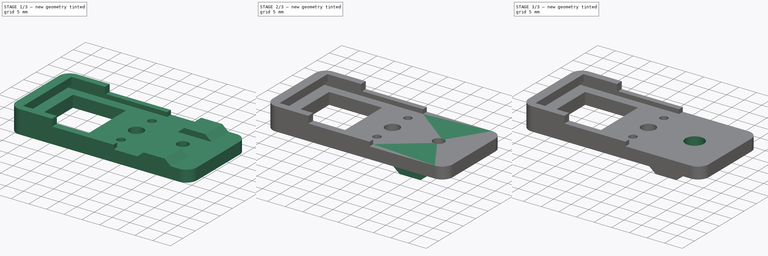
[diagram: build sequence overview — one tinted view per stage of 3, left to right]
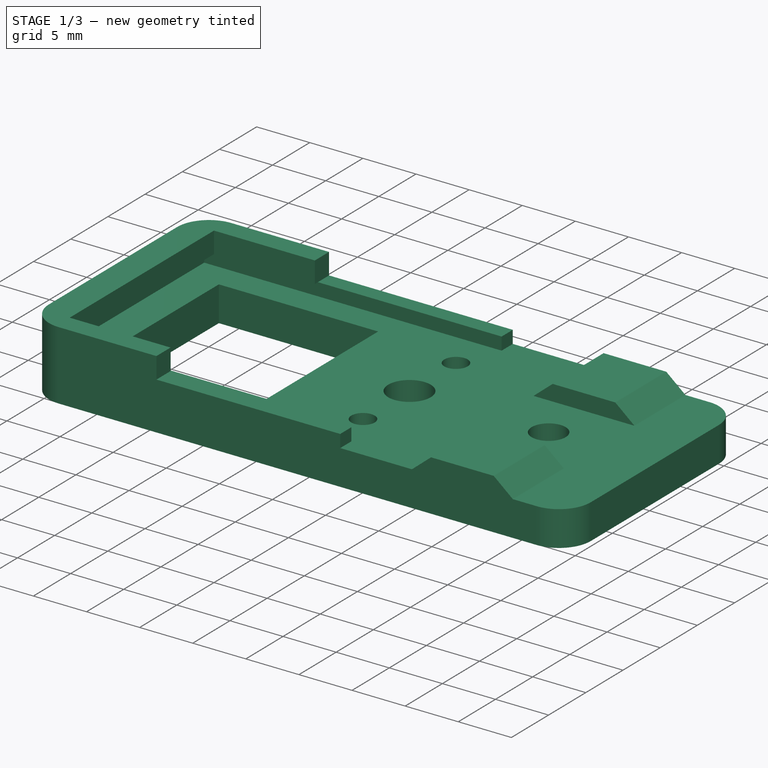
[diagram: stage 1 of 3 — iso view after this stage's code; geometry added in this stage tinted green]
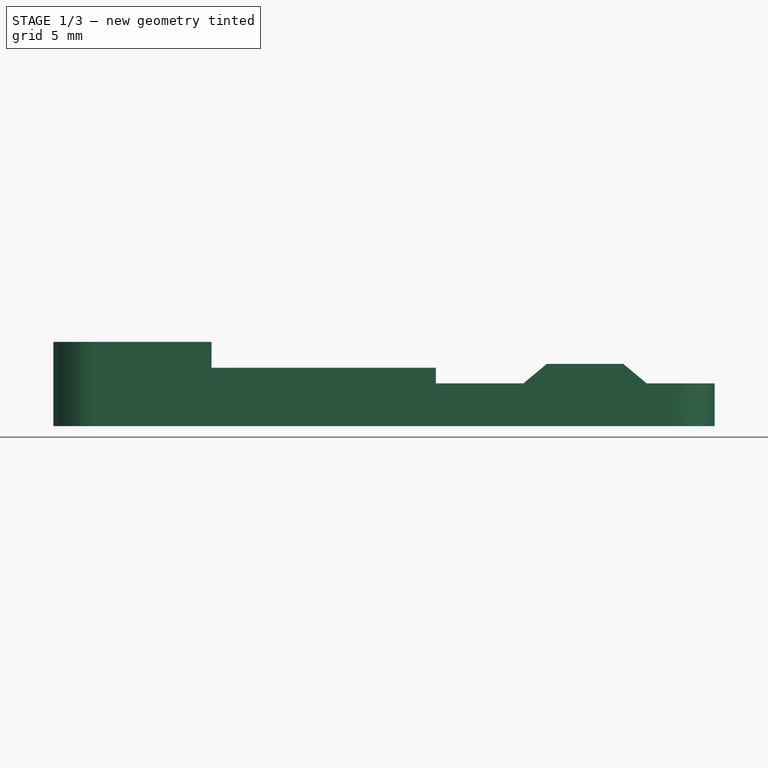
[diagram: stage 1 of 3 — front view after this stage's code; geometry added in this stage tinted green]
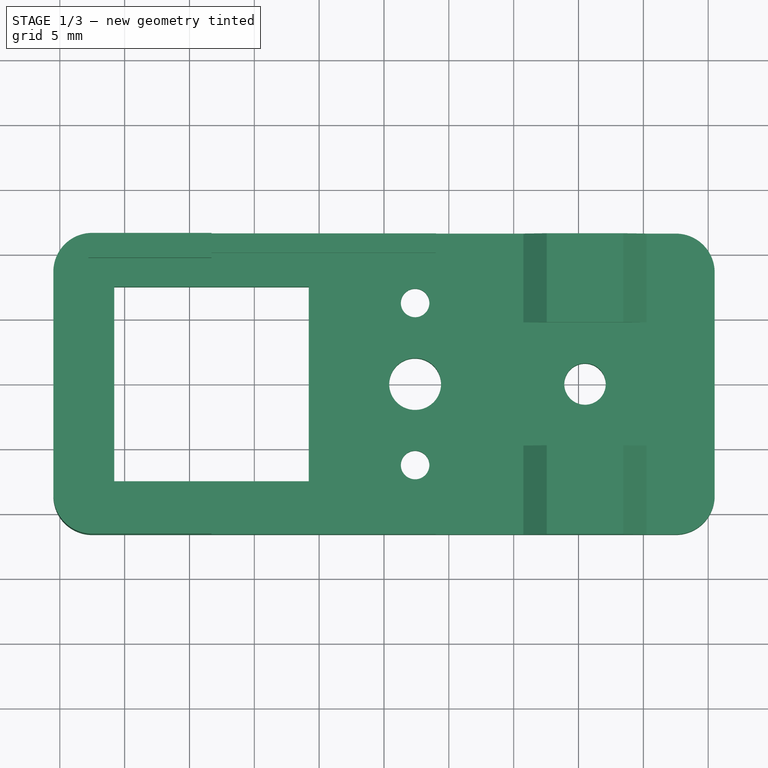
[diagram: stage 1 of 3 — top view after this stage's code; geometry added in this stage tinted green]
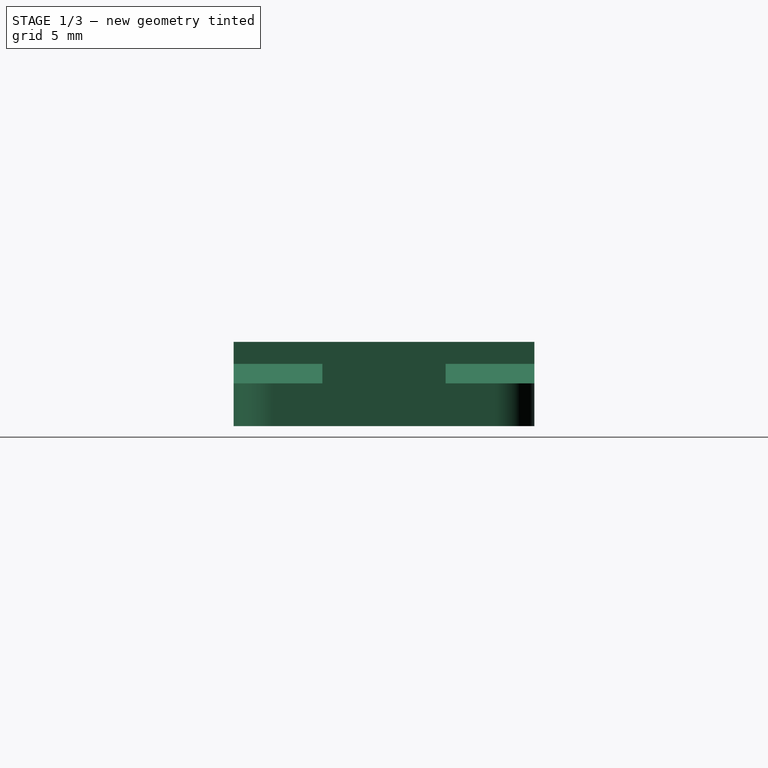
[diagram: stage 1 of 3 — right view after this stage's code; geometry added in this stage tinted green]
FCSTD DOCUMENT  (FreeCAD 1.1R44874 (Git))
Label: lamp-base-X1-V2
License: All rights reserved
LicenseURL: http://en.wikipedia.org/wiki/All_rights_reserved
objects: Sketcher::SketchObject×5, PartDesign::Pocket×4, Part::Feature×1, Part::Refine×1, PartDesign::FeatureBase×1, PartDesign::Pad×1, PartDesign::Body×1, App::Point×1
note: 30 computed .brp shape members not serialized (recipe doc carries the construction recipe); baked Part::Feature solids carry a one-line shape summary decoded from their .brp

FEATURE [Part::Feature] Body005
  shape: bbox 51 x 23.2 x 6.5 mm, 48 faces (baked)
FEATURE [Part::Refine] Body006
  Source = -> Body005
FEATURE [PartDesign::FeatureBase] BaseFeature
  BaseFeature = -> Body006
  Suppressed = false
FEATURE [Sketcher::SketchObject] Sketch
  ArcFitTolerance = 0
  AttachmentSupport = -> [BaseFeature]
  ExternalGeometry = -> [BaseFeature]
  ExternalTypes = [0]
  FullyConstrained = true
  MakeInternals = false
  MapMode = 5
  Placement = pos=(0,0,-2.3) rot=(1,0,0;3.14159rad)
  _ExternalGeoVersion = 0
  sketch-geometry (14):
    g0: LineSegment StartX=11.1876 StartY=4.15 StartZ=0 EndX=13.6124 EndY=4.15 EndZ=0
    g1: LineSegment StartX=13.6124 StartY=4.15 StartZ=0 EndX=14.8249 EndY=6.25 EndZ=0
    g2: LineSegment StartX=14.8249 StartY=6.25 StartZ=0 EndX=13.6124 EndY=8.35 EndZ=0
    g3: LineSegment StartX=13.6124 StartY=8.35 StartZ=0 EndX=11.1876 EndY=8.35 EndZ=0
    g4: LineSegment StartX=11.1876 StartY=8.35 StartZ=0 EndX=9.97513 EndY=6.25 EndZ=0
    g5: LineSegment StartX=9.97513 StartY=6.25 StartZ=0 EndX=11.1876 EndY=4.15 EndZ=0
    g6: Circle [constr] CenterX=12.4 CenterY=6.25 CenterZ=0 NormalX=0 NormalY=0 NormalZ=1 AngleXU=0 Radius=2.42487
    g7: LineSegment StartX=11.1876 StartY=-8.35 StartZ=0 EndX=13.6124 EndY=-8.35 EndZ=0
    g8: LineSegment StartX=13.6124 StartY=-8.35 StartZ=0 EndX=14.8249 EndY=-6.25 EndZ=0
    g9: LineSegment StartX=14.8249 StartY=-6.25 StartZ=0 EndX=13.6124 EndY=-4.15 EndZ=0
    g10: LineSegment StartX=13.6124 StartY=-4.15 StartZ=0 EndX=11.1876 EndY=-4.15 EndZ=0
    g11: LineSegment StartX=11.1876 StartY=-4.15 StartZ=0 EndX=9.97513 EndY=-6.25 EndZ=0
    g12: LineSegment StartX=9.97513 StartY=-6.25 StartZ=0 EndX=11.1876 EndY=-8.35 EndZ=0
    g13: Circle [constr] CenterX=12.4 CenterY=-6.25 CenterZ=0 NormalX=0 NormalY=0 NormalZ=1 AngleXU=0 Radius=2.42487
  constraints (32):
    c: Coincident(g0,g1)
    c: Coincident(g1,g2)
    c: Coincident(g2,g3)
    c: Coincident(g3,g4)
    c: Coincident(g4,g5)
    c: Coincident(g5,g0)
    c: Equal(g0, g1-g5) x5
    c: PointOnObject(g0,g6)
    c: PointOnObject(g1,g6)
    c: PointOnObject(g2,g6)
    c: PointOnObject(g3,g6)
    c: PointOnObject(g4,g6)
    c: PointOnObject(g5,g6)
    c: Coincident(g6,g-4)
    c: Coincident(g7,g8)
    c: Coincident(g8,g9)
    c: Coincident(g9,g10)
    c: Coincident(g10,g11)
    c: Coincident(g11,g12)
    c: Coincident(g12,g7)
    c: Equal(g7, g8-g12) x5
    c: PointOnObject(g7,g13)
    c: PointOnObject(g8,g13)
    c: PointOnObject(g9,g13)
    c: PointOnObject(g10,g13)
    c: PointOnObject(g11,g13)
    c: PointOnObject(g12,g13)
    c: Coincident(g13,g-3)
    c: Equal(g13,g6)
    c: Horizontal(g0)
    c: Horizontal(g7)
    c: DistanceY(g0,g2) = 4.2
FEATURE [PartDesign::Pocket] Pocket
  BaseFeature = -> BaseFeature
  Direction = (0,0,1)
  Length = 1.6
  Length2 = 5
  Profile = -> Sketch
  ReferenceAxis = -> Sketch [N_Axis]
  SideType = 0
  Suppressed = false
  Type = 0
  Type2 = 0
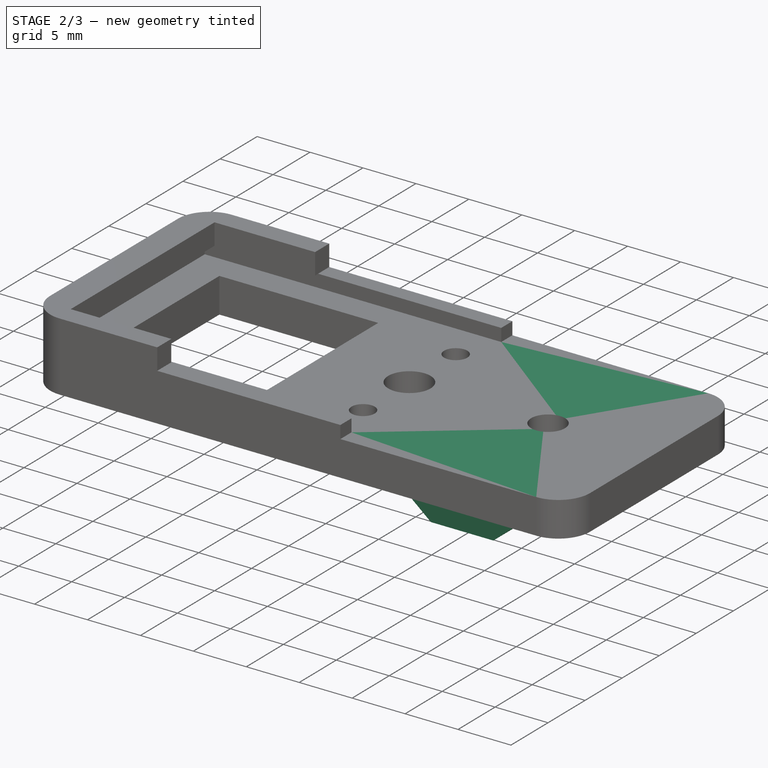
[diagram: stage 2 of 3 — iso view after this stage's code; geometry added in this stage tinted green]
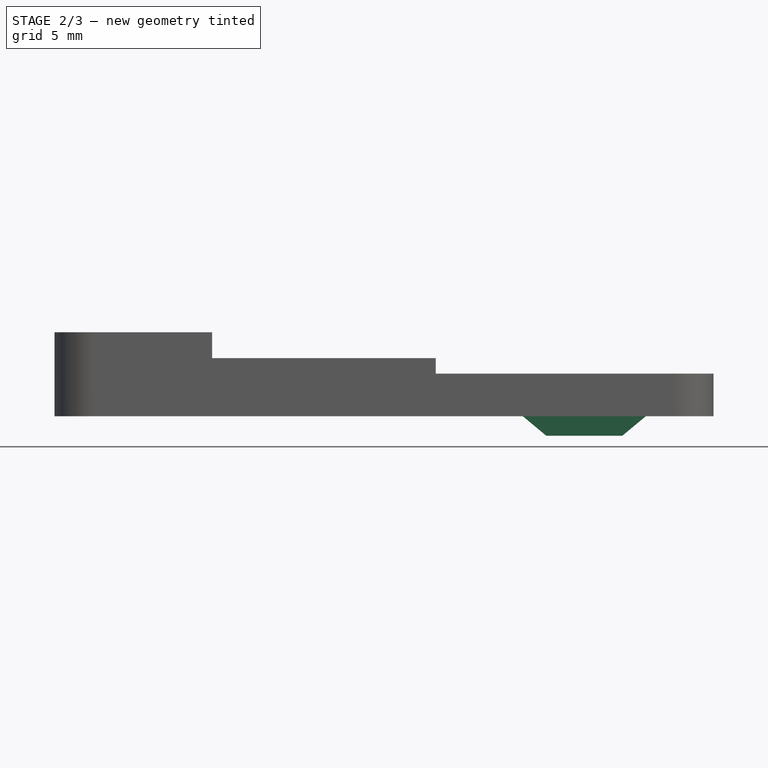
[diagram: stage 2 of 3 — front view after this stage's code; geometry added in this stage tinted green]
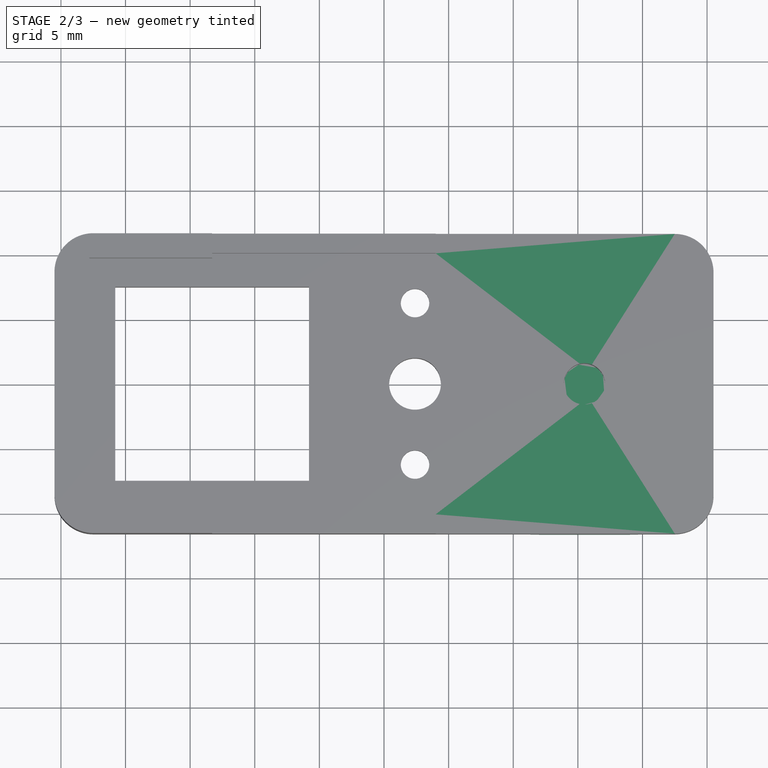
[diagram: stage 2 of 3 — top view after this stage's code; geometry added in this stage tinted green]
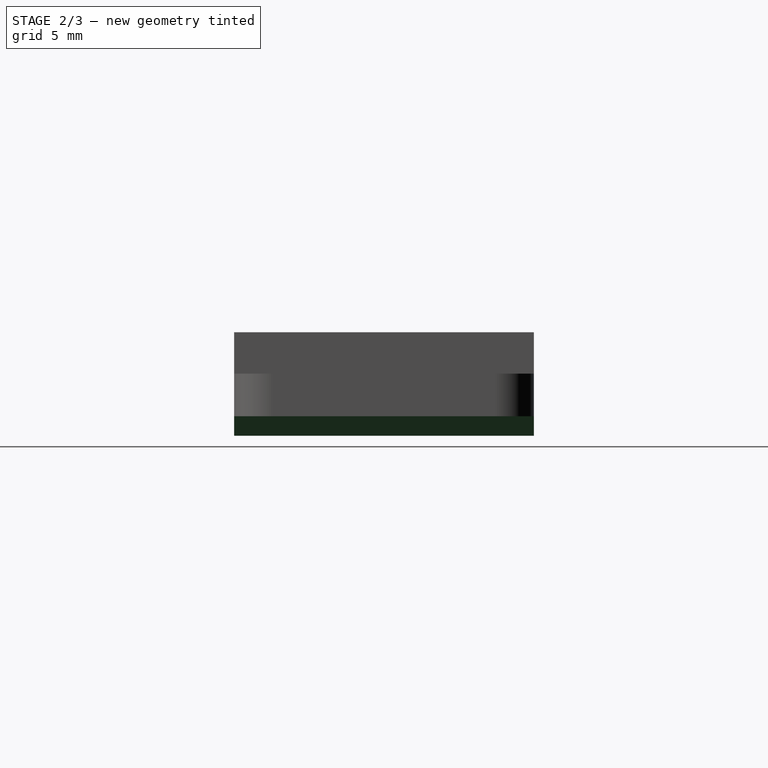
[diagram: stage 2 of 3 — right view after this stage's code; geometry added in this stage tinted green]
FEATURE [Sketcher::SketchObject] Sketch001
  ArcFitTolerance = 1e-06
  AttachmentSupport = -> [Pocket]
  ExternalGeometry = -> [Pocket]
  ExternalTypes = [0]
  FullyConstrained = true
  MakeInternals = false
  MapMode = 5
  Placement = pos=(0,-11.6,0) rot=(1,0,0;1.5708rad)
  _ExternalGeoVersion = 0
  sketch-geometry (7):
    g0: LineSegment StartX=30.25 StartY=-2.3 StartZ=0 EndX=20.75 EndY=-2.3 EndZ=0
    g1: LineSegment StartX=20.75 StartY=-2.3 StartZ=0 EndX=22.55 EndY=-3.8 EndZ=0
    g2: LineSegment StartX=22.55 StartY=-3.8 StartZ=0 EndX=28.45 EndY=-3.80002 EndZ=0
    g3: LineSegment StartX=28.45 StartY=-3.80002 StartZ=0 EndX=30.25 EndY=-2.3 EndZ=0
    g4: LineSegment [constr] StartX=20.75 StartY=1 StartZ=0 EndX=30.25 EndY=1 EndZ=0
    g5: LineSegment [constr] StartX=22.55 StartY=2.5 StartZ=0 EndX=22.55 EndY=1 EndZ=0
    g6: LineSegment [constr] StartX=22.55 StartY=-3.8 StartZ=0 EndX=22.55 EndY=-2.3 EndZ=0
  constraints (20):
    c: Coincident(g0,g1)
    c: Coincident(g1,g2)
    c: Coincident(g2,g3)
    c: Coincident(g3,g0)
    c: Coincident(g4,g-4)
    c: Coincident(g4,g-6)
    c: Equal(g0,g4)
    c: Equal(g2,g-5)
    c: Vertical(g4,g0)
    c: Vertical(g4,g0)
    c: PointOnObject(g0,g-3)
    c: Vertical(g1,g-5)
    c: Vertical(g2,g-6)
    c: Coincident(g5,g-5)
    c: PointOnObject(g5,g4)
    c: Vertical(g5)
    c: Coincident(g6,g1)
    c: PointOnObject(g6,g0)
    c: Vertical(g6)
    c: Equal(g6,g5)
FEATURE [PartDesign::Pad] Pad
  BaseFeature = -> Pocket
  Direction = (0,-1,2e-16)
  Length = 10
  Length2 = 10
  Profile = -> Sketch001
  ReferenceAxis = -> Sketch001 [N_Axis]
  Refine = true
  SideType = 0
  Suppressed = false
  Type = 3
  Type2 = 0
  UpToFace = -> Pocket [Face16]
FEATURE [Sketcher::SketchObject] Sketch002
  ArcFitTolerance = 1e-06
  AttachmentSupport = -> [Pad]
  ExternalGeometry = -> [Pad]
  ExternalTypes = [0]
  FullyConstrained = true
  MakeInternals = false
  MapMode = 5
  Placement = pos=(0,-11.6,0) rot=(1,0,0;1.5708rad)
  _ExternalGeoVersion = 0
  sketch-geometry (4):
    g0: LineSegment StartX=20.75 StartY=2.5 StartZ=0 EndX=20.75 EndY=1 EndZ=0
    g1: LineSegment StartX=20.75 StartY=1 StartZ=0 EndX=30.25 EndY=1 EndZ=0
    g2: LineSegment StartX=30.25 StartY=1 StartZ=0 EndX=30.25 EndY=2.5 EndZ=0
    g3: LineSegment StartX=30.25 StartY=2.5 StartZ=0 EndX=20.75 EndY=2.5 EndZ=0
  constraints (10):
    c: Coincident(g0,g1)
    c: Coincident(g1,g2)
    c: Coincident(g2,g3)
    c: Coincident(g3,g0)
    c: Vertical(g0)
    c: Vertical(g2)
    c: Horizontal(g3)
    c: Coincident(g1,g-5)
    c: Coincident(g0,g-4)
    c: PointOnObject(g-4,g3)
FEATURE [PartDesign::Pocket] Pocket001
  BaseFeature = -> Pad
  Direction = (0,1,-2e-16)
  Length = 5
  Length2 = 5
  Profile = -> Sketch002
  ReferenceAxis = -> Sketch002 [N_Axis]
  Refine = true
  SideType = 0
  Suppressed = false
  Type = 1
  Type2 = 0
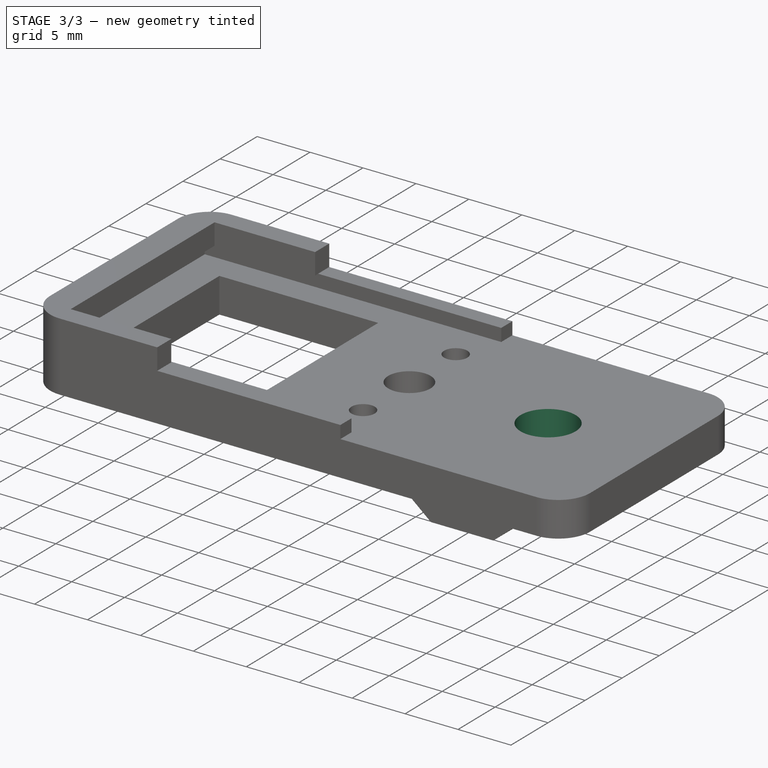
[diagram: stage 3 of 3 — iso view after this stage's code; geometry added in this stage tinted green]
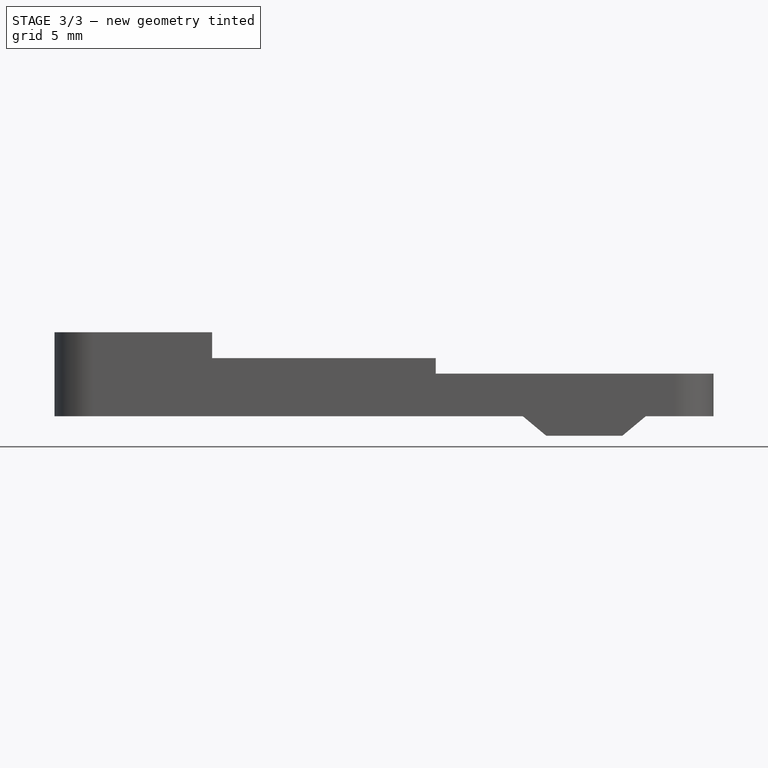
[diagram: stage 3 of 3 — front view after this stage's code; geometry added in this stage tinted green]
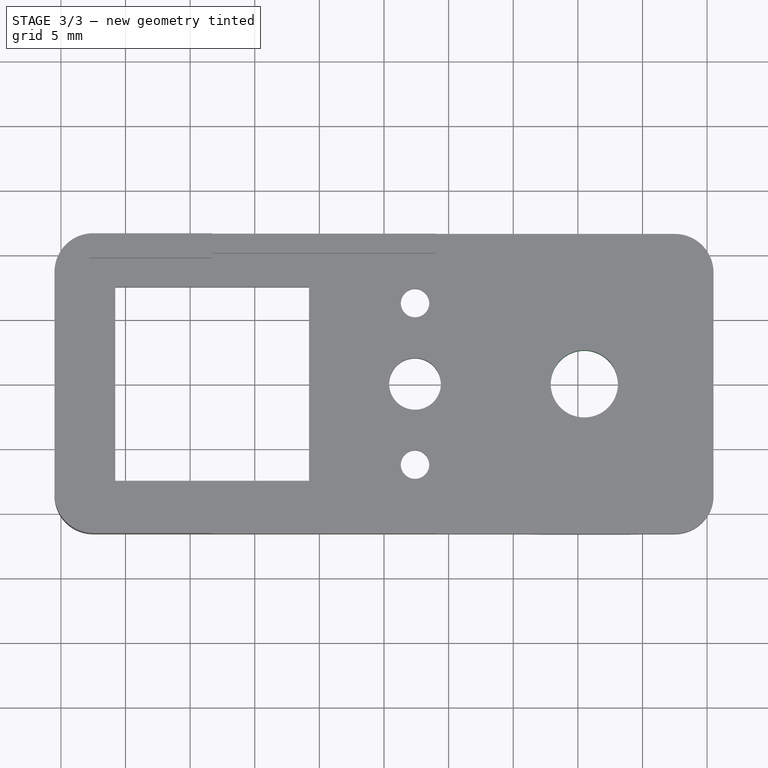
[diagram: stage 3 of 3 — top view after this stage's code; geometry added in this stage tinted green]
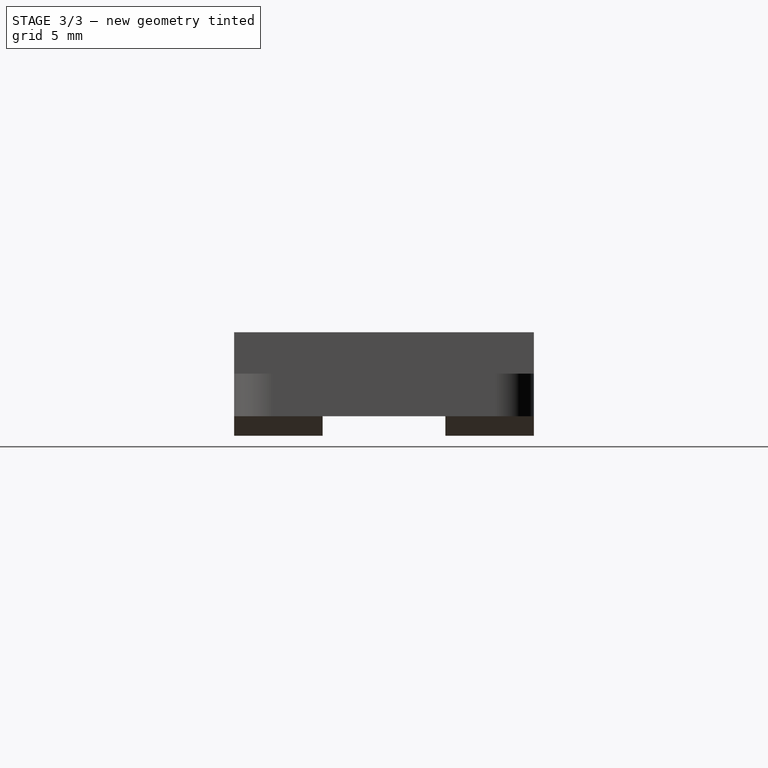
[diagram: stage 3 of 3 — right view after this stage's code; geometry added in this stage tinted green]
FEATURE [Sketcher::SketchObject] Sketch003
  ArcFitTolerance = 1e-06
  AttachmentSupport = -> [Pocket001]
  ExternalGeometry = -> [Pocket001]
  ExternalTypes = [0]
  FullyConstrained = true
  MakeInternals = false
  MapMode = 5
  Placement = pos=(0,0,1) rot=(0,0,1;0rad)
  _ExternalGeoVersion = 0
  sketch-geometry (1):
    g0: Circle CenterX=25.5 CenterY=0 CenterZ=0 NormalX=0 NormalY=0 NormalZ=1 AngleXU=0 Radius=2.6
  constraints (2):
    c: Coincident(g0,g-3)
    c: Diameter(g0) = 5.2
FEATURE [PartDesign::Pocket] Pocket002
  BaseFeature = -> Pocket001
  Direction = (0,0,-1)
  Length = 5
  Length2 = 5
  Profile = -> Sketch003
  ReferenceAxis = -> Sketch003 [N_Axis]
  Refine = true
  SideType = 0
  Suppressed = false
  Type = 1
  Type2 = 0
FEATURE [Sketcher::SketchObject] Sketch004
  ArcFitTolerance = 1e-06
  AttachmentSupport = -> [Pocket002]
  ExternalGeometry = -> [Pocket002]
  ExternalTypes = [0]
  FullyConstrained = true
  MakeInternals = false
  MapMode = 5
  Placement = pos=(-1.25908e-05,-8e-16,-3.79993) rot=(1,0,-2e-06;3.14159rad)
  _ExternalGeoVersion = 0
  sketch-geometry (5):
    g0: LineSegment StartX=20.75 StartY=4.75 StartZ=0 EndX=20.75 EndY=-4.75 EndZ=0
    g1: LineSegment StartX=20.75 StartY=-4.75 StartZ=0 EndX=30.25 EndY=-4.75 EndZ=0
    g2: LineSegment StartX=30.25 StartY=-4.75 StartZ=0 EndX=30.25 EndY=4.75 EndZ=0
    g3: LineSegment StartX=30.25 StartY=4.75 StartZ=0 EndX=20.75 EndY=4.75 EndZ=0
    g4: Circle [constr] CenterX=25.5 CenterY=-8e-16 CenterZ=0 NormalX=0 NormalY=0 NormalZ=1 AngleXU=0 Radius=4.75
  constraints (14):
    c: Coincident(g0,g1)
    c: Coincident(g1,g2)
    c: Coincident(g2,g3)
    c: Coincident(g3,g0)
    c: Vertical(g0)
    c: Vertical(g2)
    c: Horizontal(g1)
    c: Horizontal(g3)
    c: Coincident(g4,g-3)
    c: Tangent(g4,g-4)
    c: Tangent(g3,g4)
    c: Tangent(g1,g4)
    c: Tangent(g0,g4)
    c: Tangent(g2,g4)
FEATURE [PartDesign::Pocket] Pocket003
  BaseFeature = -> Pocket002
  Direction = (3.31343e-06,0,1)
  Length = 0
  Length2 = 5
  Profile = -> Sketch004
  ReferenceAxis = -> Sketch004 [N_Axis]
  Refine = true
  SideType = 0
  Suppressed = false
  Type = 3
  Type2 = 0
  UpToFace = -> Pocket002 [Face12]
FEATURE [PartDesign::Body] Body
  AllowCompound = false
  BaseFeature = -> Body006
  Group = -> [BaseFeature,Sketch,Pocket,Sketch001,Pad,Sketch002,Pocket001,Sketch003,Pocket002,Sketch004,Pocket003]
  Origin = -> Origin
  Tip = -> Pocket003
FEATURE [App::Point] Origin001  label="Origem"
  Role = Origin
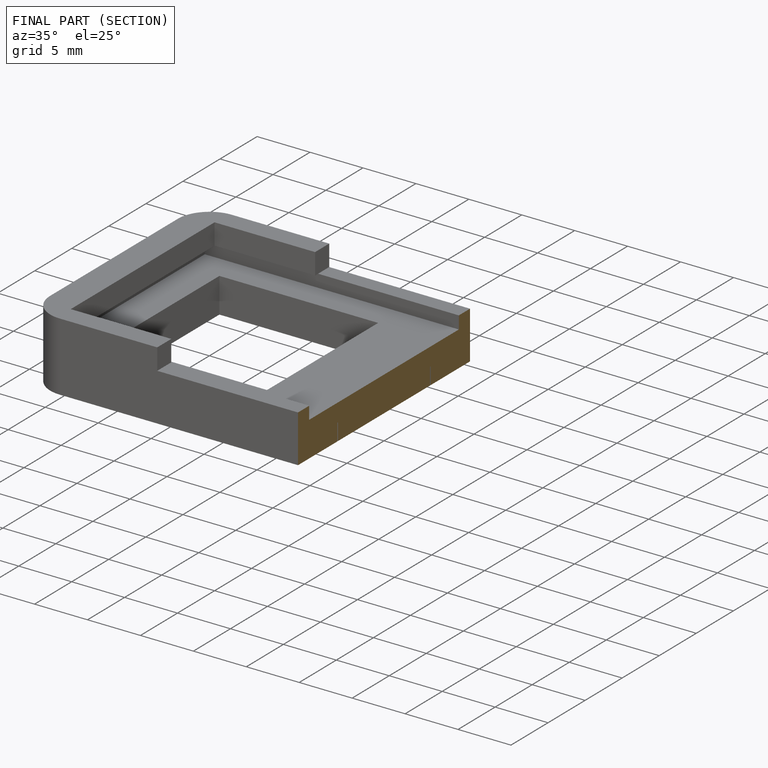
[diagram: finished part — half-section view (interior)]
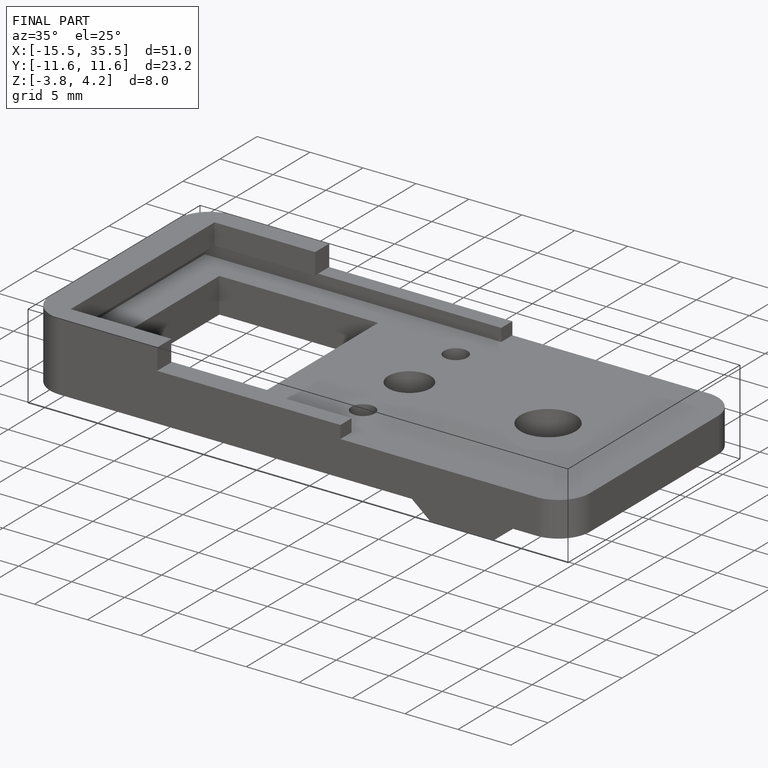
[diagram: finished part — iso view with bounding-box wireframe]
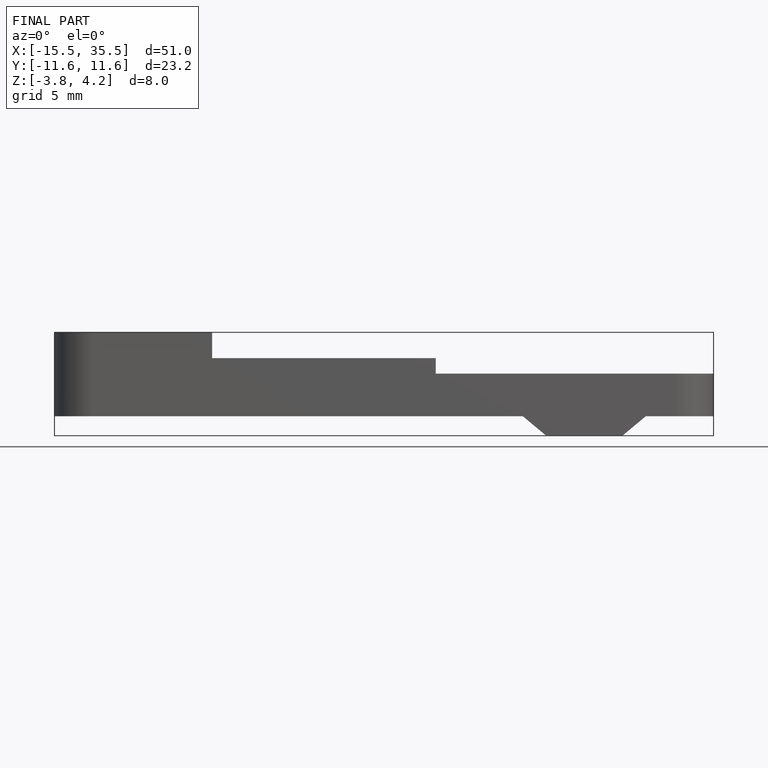
[diagram: finished part — front view with bounding-box wireframe]
